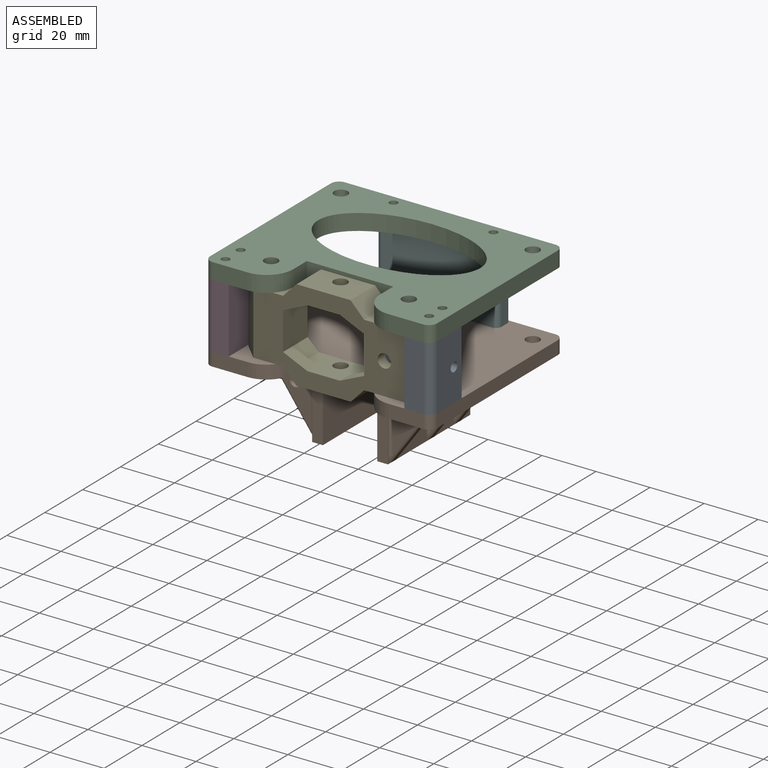
[diagram: assembled view]
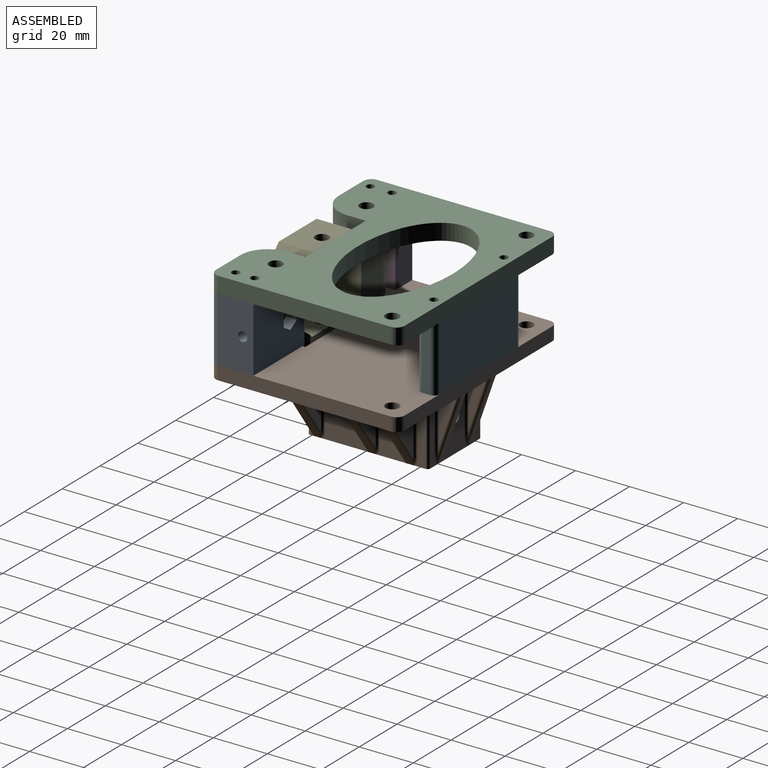
[diagram: assembled view, second angle]
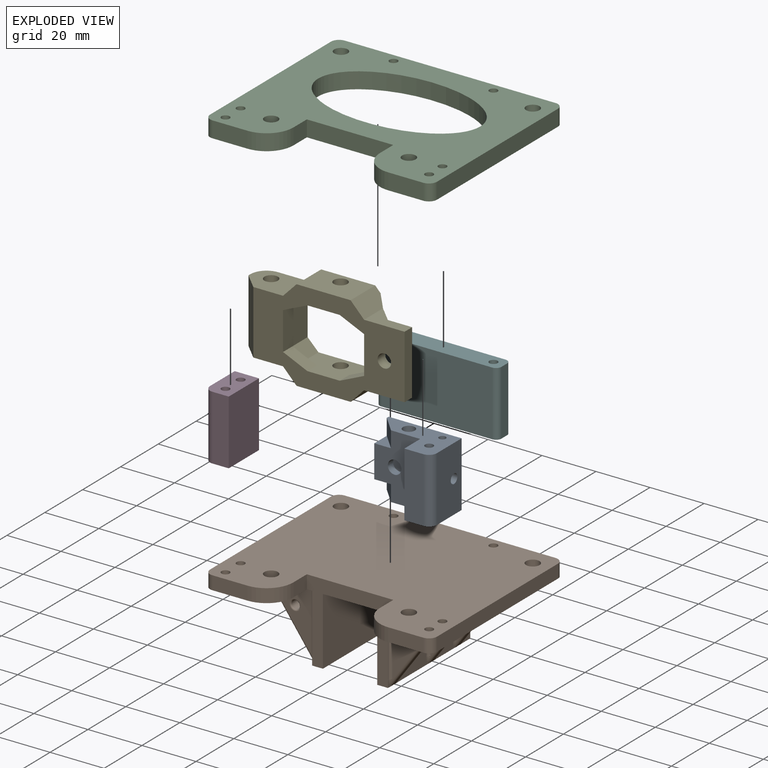
[diagram: exploded view]
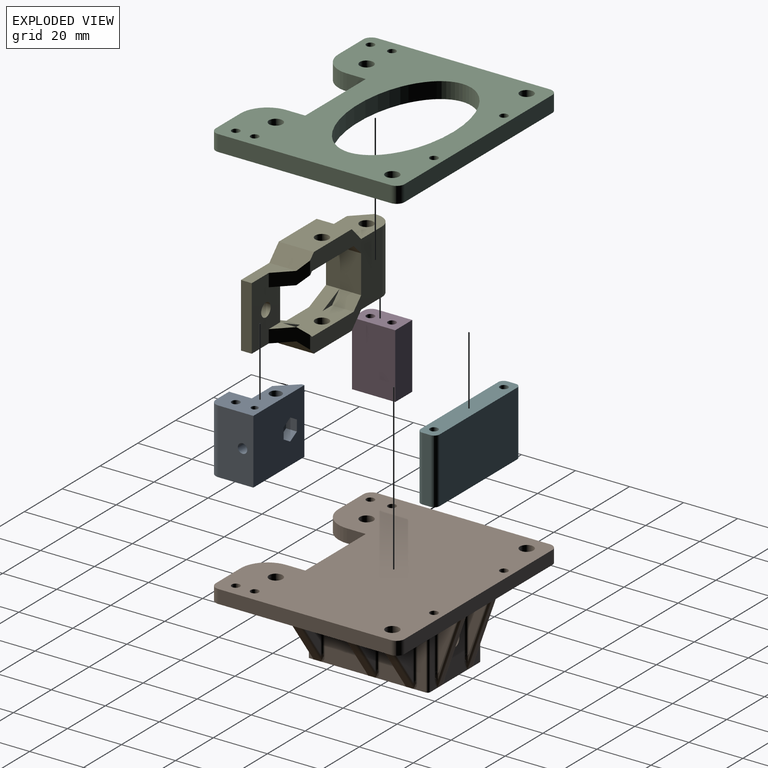
[diagram: exploded view, second angle]
ASSEMBLY  parts=6 mates=5
PART A: 33 faces, bbox 16x27x24 mm
  f0: plane 27x24mm, normal (1,0,0), area 605.6mm2, adj f2,f3,f7,f9,f20,f21,f22,f23
  f1: plane 24x17mm, normal (-1,0,0), area 314.3mm2, adj f2,f3,f4,f9,f14,f15,f16,f17
  f2: plane 27x16mm, normal (0,0,-1), area 239.7mm2, adj f0,f1,f3,f4,f5,f6,f7,f8
  f3: plane 24x7.6mm, normal (0,1,0), area 103.2mm2, adj f0,f1,f2,f9,f14,f15,f16,f17
  f4: plane 24x8.4mm, normal (0,1,0), area 201.6mm2, adj f1,f2,f5,f9
  f5: plane 24x7mm, normal (-1,0,0), area 168mm2, adj f2,f4,f6,f9
  f6: cylinder r=3mm len=24mm, axis (0,0,-1), area 113.1mm2, adj f2,f5,f7,f9
  f7: plane 24x13mm, normal (0,-1,0), area 302.4mm2, adj f0,f2,f6,f9,f27
  f8: cylinder r=1.5mm len=24mm, axis (0,0,-1), area 226.2mm2, adj f2,f9
  f9: plane 27x16mm, normal (0,0,1), area 239.7mm2, adj f0,f1,f3,f4,f5,f6,f7,f8
  f10: cylinder r=2.2mm len=8mm, axis (0,0,1), area 110.6mm2, adj f9,f11
  f11: plane 4.4x4.4mm, normal (0,0,1), area 15.2mm2, adj f10
  f12: cylinder r=2.2mm len=8mm, axis (0,0,-1), area 110.6mm2, adj f2,f13
  f13: plane 4.4x4.4mm, normal (0,0,-1), area 15.2mm2, adj f12
  f14: plane 6.6x6.17mm, normal (-0.68,0.73,0), area 54.2mm2, adj f1,f3,f9,f15
  f15: plane 6.6x6.17mm, normal (0,0,1), area 20.4mm2, adj f1,f3,f14
  f16: plane 6.6x6.17mm, normal (-0.68,0.73,0), area 54.2mm2, adj f1,f2,f3,f17
  f17: plane 6.6x6.17mm, normal (0,0,-1), area 20.4mm2, adj f1,f3,f16
  f18: cylinder r=2.5mm len=5mm, axis (-1,0,0), area 44mm2, adj f1,f19
  f19: plane 5x5mm, normal (-1,0,0), area 19.6mm2, adj f18
  f20: plane 4.04x4mm, normal (0,1,0), area 16.2mm2, adj f0,f21,f25,f26
  f21: plane 4x3.5mm, normal (0,0.5,0.87), area 16.2mm2, adj f0,f20,f22,f26
  f22: plane 4x3.5mm, normal (0,-0.5,0.87), area 16.2mm2, adj f0,f21,f23,f26
  f23: plane 4.04x4mm, normal (0,-1,0), area 16.2mm2, adj f0,f22,f24,f26
  f24: plane 4x3.5mm, normal (0,-0.5,-0.87), area 16.2mm2, adj f0,f23,f25,f26
  f25: plane 4x3.5mm, normal (0,0.5,-0.87), area 16.2mm2, adj f0,f20,f24,f26
  f26: plane 8.08x7mm, normal (1,0,0), area 42.4mm2, adj f20,f21,f22,f23,f24,f25
  f27: cylinder r=1.75mm len=11mm, axis (0,-1,0), area 121mm2, adj f7,f28
  f28: plane 3.5x3.5mm, normal (0,-1,0), area 9.6mm2, adj f27
  f29: cylinder r=1.25mm len=8mm, axis (0,0,1), area 62.8mm2, adj f9,f30
  f30: plane 2.5x2.5mm, normal (0,0,1), area 4.9mm2, adj f29
  f31: cylinder r=1.25mm len=8mm, axis (0,0,-1), area 62.8mm2, adj f2,f32
  f32: plane 2.5x2.5mm, normal (0,0,-1), area 4.9mm2, adj f31
PART B: 142 faces, bbox 84.7x70.6x31 mm
  f0: plane 19.08x6.64mm, normal (-1,0,0), area 63.4mm2, adj f5,f82,f121
  f1: plane 78x5mm, normal (0,1,0), area 390mm2, adj f3,f4,f5,f13,f14,f29,f72,f73
  f2: plane 21.9x15.77mm, normal (0,-1,0), area 159.5mm2, adj f5,f94,f97,f141
  f3: plane 70.2x33.45mm, normal (0,0,-1), area 1655.8mm2, adj f1,f7,f8,f9,f10,f11,f12,f13
  f4: plane 13.95x8.85mm, normal (0,0,-1), area 102.7mm2, adj f1,f42,f43,f44,f79,f80,f125,f127
  f5: plane 70.2x33.35mm, normal (0,0,-1), area 1655mm2, adj f0,f1,f2,f6,f7,f14,f15,f16
  f6: plane 7x5mm, normal (1,0,0), area 35mm2, adj f5,f7,f28,f29
  f7: plane 32x30mm, normal (0,-1,0), area 360mm2, adj f3,f5,f6,f8,f29,f30,f31,f32
  f8: plane 7x5mm, normal (-1,0,0), area 35mm2, adj f3,f7,f9,f29
  f9: cylinder r=10mm len=10mm, axis (0,0,-1), area 78.5mm2, adj f3,f8,f10,f29
  f10: plane 13x5mm, normal (0,-1,0), area 65mm2, adj f3,f9,f11,f29
  f11: cylinder r=3mm len=5mm, axis (0,0,-1), area 23.6mm2, adj f3,f10,f12,f29
  f12: plane 63.9x5mm, normal (1,0,0), area 319.5mm2, adj f3,f11,f13,f29
  f13: cylinder r=3mm len=5mm, axis (0,0,-1), area 23.6mm2, adj f1,f3,f12,f29
  f14: cylinder r=3mm len=5mm, axis (0,0,-1), area 23.6mm2, adj f1,f5,f15,f29
  f15: plane 63.9x5mm, normal (-1,0,0), area 319.5mm2, adj f5,f14,f16,f29
  f16: cylinder r=3mm len=5mm, axis (0,0,-1), area 23.6mm2, adj f5,f15,f17,f29
  f17: plane 13x5mm, normal (0,-1,0), area 65mm2, adj f5,f16,f28,f29
  f18: cylinder r=1.5mm len=5mm, axis (0,0,-1), area 47.1mm2, adj f3,f29
  f19: cylinder r=2.5mm len=5mm, axis (0,0,-1), area 78.5mm2, adj f3,f29
  f20: cylinder r=1.5mm len=5mm, axis (0,0,-1), area 47.1mm2, adj f5,f29
  f21: cylinder r=1.5mm len=5mm, axis (0,0,-1), area 47.1mm2, adj f5,f29
  f22: cylinder r=2.5mm len=5mm, axis (0,0,-1), area 78.5mm2, adj f5,f29
  f23: cylinder r=2.5mm len=5mm, axis (0,0,-1), area 78.5mm2, adj f5,f29
  f24: cylinder r=2.5mm len=5mm, axis (0,0,-1), area 78.5mm2, adj f3,f29
  f25: cylinder r=1.5mm len=5mm, axis (0,0,-1), area 47.1mm2, adj f5,f29
  f26: cylinder r=1.5mm len=5mm, axis (0,0,-1), area 47.1mm2, adj f3,f29
  f27: cylinder r=1.5mm len=5mm, axis (0,0,-1), area 47.1mm2, adj f3,f29
  f28: cylinder r=10mm len=10mm, axis (0,0,-1), area 78.5mm2, adj f5,f6,f17,f29
  f29: plane 84x69.9mm, normal (0,0,1), area 5156mm2, adj f1,f6,f7,f8,f9,f10,f11,f12
  f30: plane 40.2x20.1mm, normal (0,0,-1), area 800mm2, adj f7,f31,f57,f58,f59,f60,f61,f62
  f31: plane 40.2x25mm, normal (1,0,0), area 976.7mm2, adj f7,f30,f62,f63,f130
  f32: plane 3.1x1.15mm, normal (-1,0,0), area 1mm2, adj f7,f63,f98
  f33: plane 21.9x15.77mm, normal (0,1,0), area 159.5mm2, adj f5,f89,f107,f138
  f34: plane 25x10.31mm, normal (-1,0,0), area 202mm2, adj f5,f63,f105,f106,f107,f108
  f35: plane 21.9x15.77mm, normal (0,-1,0), area 159.5mm2, adj f5,f90,f105,f139
  f36: plane 21.9x15.77mm, normal (0,1,0), area 159.5mm2, adj f5,f91,f103,f140
  f37: plane 25x16.51mm, normal (-1,0,0), area 328.7mm2, adj f5,f63,f101,f102,f103,f104,f131
  f38: plane 21.9x15.77mm, normal (0,-1,0), area 172.7mm2, adj f5,f92,f101
  f39: plane 21.9x15.77mm, normal (0,1,0), area 172.7mm2, adj f5,f93,f99
  f40: plane 25x4.15mm, normal (-1,0,0), area 76mm2, adj f5,f63,f95,f99,f100
  f41: plane 25.42x4.05mm, normal (0,1,0), area 54.8mm2, adj f5,f63,f95,f121,f122
  f42: plane 19.08x6.64mm, normal (1,0,0), area 63.4mm2, adj f4,f79,f127
  f43: plane 25.42x13.28mm, normal (0,1,0), area 230mm2, adj f4,f63,f78,f125,f126,f127,f128
  f44: plane 19.08x6.64mm, normal (-1,0,0), area 63.4mm2, adj f4,f80,f125
  f45: plane 19.08x6.64mm, normal (1,0,0), area 63.4mm2, adj f3,f81,f123
  f46: plane 25.42x4.15mm, normal (0,1,0), area 57.3mm2, adj f3,f63,f96,f123,f124
  f47: plane 25x4.15mm, normal (1,0,0), area 76mm2, adj f3,f63,f96,f109,f110
  f48: plane 21.9x15.77mm, normal (0,1,0), area 159.5mm2, adj f3,f88,f109,f137
  f49: plane 21.9x15.77mm, normal (0,-1,0), area 159.5mm2, adj f3,f83,f119,f134
  f50: plane 25x10.31mm, normal (1,0,0), area 202mm2, adj f3,f63,f117,f118,f119,f120
  f51: plane 21.9x15.77mm, normal (0,1,0), area 159.5mm2, adj f3,f84,f117,f135
  f52: plane 21.9x15.77mm, normal (0,-1,0), area 159.5mm2, adj f3,f85,f115,f136
  f53: plane 25x16.51mm, normal (1,0,0), area 328.7mm2, adj f3,f63,f113,f114,f115,f116,f133
  f54: plane 21.9x15.77mm, normal (0,1,0), area 172.7mm2, adj f3,f86,f113
  f55: plane 21.9x15.77mm, normal (0,-1,0), area 172.7mm2, adj f3,f87,f111
  f56: plane 3.1x1.15mm, normal (1,0,0), area 1mm2, adj f7,f63,f112
  f57: plane 40.2x25mm, normal (-1,0,0), area 976.7mm2, adj f7,f30,f58,f63,f132
  f58: plane 25x5.55mm, normal (0,-1,0), area 138.8mm2, adj f30,f57,f59,f63
  f59: plane 25x1mm, normal (0.72,-0.69,0), area 34.5mm2, adj f30,f58,f60,f63
  f60: plane 25x7mm, normal (0,-1,0), area 146.7mm2, adj f30,f59,f61,f63,f129
  f61: plane 25x1.05mm, normal (-0.69,-0.72,0), area 36.2mm2, adj f30,f60,f62,f63
  f62: plane 25x5.55mm, normal (0,-1,0), area 138.7mm2, adj f30,f31,f61,f63
  f63: plane 44.87x28.86mm, normal (0,0,-1), area 442.1mm2, adj f7,f31,f32,f34,f37,f40,f41,f43
  f64: cylinder r=1.55mm len=3.1mm, axis (0,-1,0), area 29.2mm2, adj f139,f140
  f65: cylinder r=1.55mm len=3.1mm, axis (0,-1,0), area 29.2mm2, adj f138,f141
  f66: plane 25.15x18.15mm, normal (-0.81,0,-0.58), area 61.4mm2, adj f5,f63,f92,f93,f100,f102
  f67: plane 25.15x18.15mm, normal (-0.81,0,-0.58), area 61.4mm2, adj f5,f63,f90,f91,f104,f106
  f68: plane 25.15x18.15mm, normal (-0.81,0,-0.58), area 61.4mm2, adj f5,f63,f89,f94,f98,f108
  f69: plane 25.15x18.15mm, normal (0.81,0,-0.58), area 61.4mm2, adj f3,f63,f86,f87,f112,f114
  f70: plane 25.15x18.15mm, normal (0.81,0,-0.58), area 61.4mm2, adj f3,f63,f84,f85,f116,f118
  f71: plane 25.15x18.15mm, normal (0.81,0,-0.58), area 61.4mm2, adj f3,f63,f83,f88,f110,f120
  f72: plane 25.09x8.79mm, normal (0,0.94,-0.33), area 52.9mm2, adj f1,f63,f80,f81,f124,f126
  f73: plane 25.09x8.79mm, normal (0,0.94,-0.33), area 52.9mm2, adj f1,f63,f79,f82,f122,f128
  f74: cylinder r=1.55mm len=3.1mm, axis (0,1,0), area 29.2mm2, adj f135,f136
  f75: cylinder r=1.55mm len=3.1mm, axis (0,1,0), area 29.2mm2, adj f134,f137
  f76: cylinder r=2.5mm len=5mm, axis (-1,0,0), area 47.1mm2, adj f132,f133
  f77: cylinder r=2.5mm len=5mm, axis (1,0,0), area 47.1mm2, adj f130,f131
  f78: cylinder r=2.5mm len=5mm, axis (0,-1,0), area 70.7mm2, adj f43,f129
  f79: cylinder r=1mm len=25.17mm, axis (0,0.33,0.94), area 37.8mm2, adj f4,f42,f73,f128
  f80: cylinder r=1mm len=25.17mm, axis (0,-0.33,-0.94), area 37.8mm2, adj f4,f44,f72,f126
  f81: cylinder r=1mm len=25.17mm, axis (0,0.33,0.94), area 37.8mm2, adj f3,f45,f72,f124
  f82: cylinder r=1mm len=25.17mm, axis (0,0.33,0.94), area 37.8mm2, adj f0,f5,f73,f122
  f83: cylinder r=1mm len=25.32mm, axis (0.58,0,0.81), area 45.1mm2, adj f3,f49,f71,f120
  f84: cylinder r=1mm len=25.32mm, axis (-0.58,0,-0.81), area 45.1mm2, adj f3,f51,f70,f118
  f85: cylinder r=1mm len=25.32mm, axis (0.58,0,0.81), area 45.1mm2, adj f3,f52,f70,f116
  f86: cylinder r=1mm len=25.32mm, axis (-0.58,0,-0.81), area 45.1mm2, adj f3,f54,f69,f114
  f87: cylinder r=1mm len=25.32mm, axis (0.58,0,0.81), area 45.1mm2, adj f3,f55,f69,f112
  f88: cylinder r=1mm len=25.32mm, axis (-0.58,0,-0.81), area 45.1mm2, adj f3,f48,f71,f110
  f89: cylinder r=1mm len=25.32mm, axis (-0.58,0,0.81), area 45.1mm2, adj f5,f33,f68,f108
  f90: cylinder r=1mm len=25.32mm, axis (0.58,0,-0.81), area 45.1mm2, adj f5,f35,f67,f106
  f91: cylinder r=1mm len=25.32mm, axis (-0.58,0,0.81), area 45.1mm2, adj f5,f36,f67,f104
  f92: cylinder r=1mm len=25.32mm, axis (0.58,0,-0.81), area 45.1mm2, adj f5,f38,f66,f102
  f93: cylinder r=1mm len=25.32mm, axis (-0.58,0,0.81), area 45.1mm2, adj f5,f39,f66,f100
  f94: cylinder r=1mm len=25.32mm, axis (-0.58,0,0.81), area 45.1mm2, adj f2,f5,f68,f98
  f95: cylinder r=1mm len=25mm, axis (0,0,1), area 39.3mm2, adj f5,f40,f41,f63
  f96: cylinder r=1mm len=25mm, axis (0,0,-1), area 39.3mm2, adj f3,f46,f47,f63
  f97: cylinder r=1mm len=21.9mm, axis (0,0,1), area 34.4mm2, adj f2,f5,f7,f98
  f98: bspline ~3.42x2.85mm, area 4.2mm2, adj f32,f63,f68,f94,f97
  f99: cylinder r=1mm len=21.9mm, axis (0,0,-1), area 34.4mm2, adj f5,f39,f40,f100
  f100: bspline ~3.42x2.85mm, area 4.2mm2, adj f40,f63,f66,f93,f99
  f101: cylinder r=1mm len=21.9mm, axis (0,0,-1), area 34.4mm2, adj f5,f37,f38,f102
  f102: bspline ~3.42x2.85mm, area 4.2mm2, adj f37,f63,f66,f92,f101
  f103: cylinder r=1mm len=21.9mm, axis (0,0,-1), area 34.4mm2, adj f5,f36,f37,f104
  f104: bspline ~3.42x2.85mm, area 4.2mm2, adj f37,f63,f67,f91,f103
  f105: cylinder r=1mm len=21.9mm, axis (0,0,-1), area 34.4mm2, adj f5,f34,f35,f106
  f106: bspline ~3.42x2.85mm, area 4.2mm2, adj f34,f63,f67,f90,f105
  f107: cylinder r=1mm len=21.9mm, axis (0,0,-1), area 34.4mm2, adj f5,f33,f34,f108
  f108: bspline ~3.42x2.85mm, area 4.2mm2, adj f34,f63,f68,f89,f107
  f109: cylinder r=1mm len=21.9mm, axis (0,0,-1), area 34.4mm2, adj f3,f47,f48,f110
  f110: bspline ~3.42x2.85mm, area 4.2mm2, adj f47,f63,f71,f88,f109
  f111: cylinder r=1mm len=21.9mm, axis (0,0,1), area 34.4mm2, adj f3,f7,f55,f112
  f112: bspline ~3.42x2.85mm, area 4.2mm2, adj f56,f63,f69,f87,f111
  f113: cylinder r=1mm len=21.9mm, axis (0,0,-1), area 34.4mm2, adj f3,f53,f54,f114
  f114: bspline ~3.42x2.85mm, area 4.2mm2, adj f53,f63,f69,f86,f113
  f115: cylinder r=1mm len=21.9mm, axis (0,0,-1), area 34.4mm2, adj f3,f52,f53,f116
  f116: bspline ~3.42x2.85mm, area 4.2mm2, adj f53,f63,f70,f85,f115
  f117: cylinder r=1mm len=21.9mm, axis (0,0,-1), area 34.4mm2, adj f3,f50,f51,f118
  f118: bspline ~3.42x2.85mm, area 4.2mm2, adj f50,f63,f70,f84,f117
  f119: cylinder r=1mm len=21.9mm, axis (0,0,-1), area 34.4mm2, adj f3,f49,f50,f120
  f120: bspline ~3.42x2.85mm, area 4.2mm2, adj f50,f63,f71,f83,f119
  f121: cylinder r=1mm len=19.08mm, axis (0,0,-1), area 30mm2, adj f0,f5,f41,f122
  f122: bspline ~6.08x2.47mm, area 6.4mm2, adj f41,f63,f73,f82,f121
  f123: cylinder r=1mm len=19.08mm, axis (0,0,1), area 30mm2, adj f3,f45,f46,f124
  f124: bspline ~6.08x2.47mm, area 6.4mm2, adj f46,f63,f72,f81,f123
  f125: cylinder r=1mm len=19.08mm, axis (0,0,-1), area 30mm2, adj f4,f43,f44,f126
  f126: bspline ~6.08x2.47mm, area 6.4mm2, adj f43,f63,f72,f80,f125
  f127: cylinder r=1mm len=19.08mm, axis (0,0,1), area 30mm2, adj f4,f42,f43,f128
  f128: bspline ~6.08x2.47mm, area 6.4mm2, adj f43,f63,f73,f79,f127
  f129: torus R=3mm, axis (0,-1,0), area 13.2mm2, adj f60,f78
  f130: torus R=3mm, axis (1,0,0), area 13.2mm2, adj f31,f77
  f131: torus R=3mm, axis (1,0,0), area 13.2mm2, adj f37,f77
  f132: torus R=3mm, axis (1,0,0), area 13.2mm2, adj f57,f76
  f133: torus R=3mm, axis (1,0,0), area 13.2mm2, adj f53,f76
  f134: torus R=2.05mm, axis (0,-1,0), area 8.5mm2, adj f49,f75
  f135: torus R=2.05mm, axis (0,1,0), area 8.5mm2, adj f51,f74
  f136: torus R=2.05mm, axis (0,-1,0), area 8.5mm2, adj f52,f74
  f137: torus R=2.05mm, axis (0,1,0), area 8.5mm2, adj f48,f75
  f138: torus R=2.05mm, axis (0,-1,0), area 8.5mm2, adj f33,f65
  f139: torus R=2.05mm, axis (0,1,0), area 8.5mm2, adj f35,f64
  f140: torus R=2.05mm, axis (0,-1,0), area 8.5mm2, adj f36,f64
  f141: torus R=2.05mm, axis (0,1,0), area 8.5mm2, adj f2,f65
PART C: 27 faces, bbox 84x69.9x6 mm
  f0: plane 7x6mm, normal (1,0,0), area 42mm2, adj f1,f24,f25,f26
  f1: plane 32x6mm, normal (0,-1,0), area 192mm2, adj f0,f2,f25,f26
  f2: plane 7x6mm, normal (-1,0,0), area 42mm2, adj f1,f3,f25,f26
  f3: cylinder r=10mm len=10mm, axis (0,0,-1), area 94.2mm2, adj f2,f4,f25,f26
  f4: plane 13x6mm, normal (0,-1,0), area 78mm2, adj f3,f5,f25,f26
  f5: cylinder r=3mm len=6mm, axis (0,0,-1), area 28.3mm2, adj f4,f6,f25,f26
  f6: plane 63.9x6mm, normal (1,0,0), area 383.4mm2, adj f5,f7,f25,f26
  f7: cylinder r=3mm len=6mm, axis (0,0,-1), area 28.3mm2, adj f6,f8,f25,f26
  f8: plane 78x6mm, normal (0,1,0), area 468mm2, adj f7,f9,f25,f26
  f9: cylinder r=3mm len=6mm, axis (0,0,-1), area 28.3mm2, adj f8,f10,f25,f26
  f10: plane 63.9x6mm, normal (-1,0,0), area 383.4mm2, adj f9,f11,f25,f26
  f11: cylinder r=3mm len=6mm, axis (0,0,-1), area 28.3mm2, adj f10,f12,f25,f26
  f12: plane 13x6mm, normal (0,-1,0), area 78mm2, adj f11,f24,f25,f26
  f13: cylinder r=1.5mm len=6mm, axis (0,0,-1), area 56.5mm2, adj f25,f26
  f14: cylinder r=2.5mm len=6mm, axis (0,0,-1), area 94.2mm2, adj f25,f26
  f15: cylinder r=1.5mm len=6mm, axis (0,0,-1), area 56.5mm2, adj f25,f26
  f16: cylinder r=1.5mm len=6mm, axis (0,0,-1), area 56.5mm2, adj f25,f26
  f17: cylinder r=2.5mm len=6mm, axis (0,0,-1), area 94.2mm2, adj f25,f26
  f18: cylinder r=2.5mm len=6mm, axis (0,0,-1), area 94.2mm2, adj f25,f26
  f19: cylinder r=2.5mm len=6mm, axis (0,0,-1), area 94.2mm2, adj f25,f26
  f20: cylinder r=1.5mm len=6mm, axis (0,0,-1), area 56.5mm2, adj f25,f26
  f21: cylinder r=1.5mm len=6mm, axis (0,0,-1), area 56.5mm2, adj f25,f26
  f22: cylinder r=1.5mm len=6mm, axis (0,0,-1), area 56.5mm2, adj f25,f26
  f23: extruded ~60x35mm, area 910.9mm2, adj f25,f26
  f24: cylinder r=10mm len=10mm, axis (0,0,-1), area 94.2mm2, adj f0,f12,f25,f26
  f25: plane 84x69.9mm, normal (0,0,1), area 3506.7mm2, adj f0,f1,f2,f3,f4,f5,f6,f7
  f26: plane 84x69.9mm, normal (0,0,-1), area 3506.7mm2, adj f0,f1,f2,f3,f4,f5,f6,f7
PART D: 9 faces, bbox 16x9x24 mm
  f0: plane 24x9mm, normal (1,0,0), area 216mm2, adj f1,f5,f7,f8
  f1: plane 24x13mm, normal (0,1,0), area 312mm2, adj f0,f2,f7,f8
  f2: cylinder r=3mm len=24mm, axis (0,0,-1), area 113.1mm2, adj f1,f3,f7,f8
  f3: plane 24x6mm, normal (-1,0,0), area 144mm2, adj f2,f5,f7,f8
  f4: cylinder r=1.5mm len=24mm, axis (0,0,-1), area 226.2mm2, adj f7,f8
  f5: plane 24x16mm, normal (0,-1,0), area 384mm2, adj f0,f3,f7,f8
  f6: cylinder r=1.5mm len=24mm, axis (0,0,-1), area 226.2mm2, adj f7,f8
  f7: plane 16x9mm, normal (0,0,1), area 127.9mm2, adj f0,f1,f2,f3,f4,f5,f6
  f8: plane 16x9mm, normal (0,0,-1), area 127.9mm2, adj f0,f1,f2,f3,f4,f5,f6
PART E: 41 faces, bbox 62x34x13 mm
  f0: plane 14x4mm, normal (-1,0,0), area 56mm2, adj f7,f8,f22,f36
  f1: plane 23.6x4mm, normal (1,0,0), area 94.4mm2, adj f2,f3,f22,f36
  f2: plane 15x10mm, normal (0,-1,0), area 78mm2, adj f1,f14,f22,f36,f37
  f3: plane 15x10mm, normal (0,1,0), area 78mm2, adj f1,f15,f22,f36,f38
  f4: cylinder r=2.5mm len=5mm, axis (0,0,-1), area 62.8mm2, adj f22,f36
  f5: plane 9x5mm, normal (0.41,0.91,0), area 49.2mm2, adj f10,f11,f22,f27
  f6: plane 9x5mm, normal (0.41,-0.91,0), area 49.2mm2, adj f11,f12,f22,f33
  f7: plane 9x5mm, normal (-0.41,-0.91,0), area 49.2mm2, adj f0,f12,f22,f31,f34
  f8: plane 9x5mm, normal (-0.41,0.91,0), area 49.2mm2, adj f0,f10,f22,f29,f35
  f9: plane 38x34mm, normal (0,0,1), area 570.4mm2, adj f10,f11,f12,f13,f14,f15,f16,f17
  f10: plane 22x13mm, normal (0,1,0), area 216.4mm2, adj f5,f8,f9,f22,f26,f27,f28,f29
  f11: plane 14x13mm, normal (1,0,0), area 182mm2, adj f5,f6,f9,f22,f26,f32
  f12: plane 22x13mm, normal (0,-1,0), area 216.4mm2, adj f6,f7,f9,f22,f30,f31,f32,f33
  f13: plane 20x13mm, normal (0,-1,0), area 240.4mm2, adj f9,f14,f21,f22,f40
  f14: plane 13x5.2mm, normal (0.72,-0.69,0), area 87.3mm2, adj f2,f9,f13,f22,f37
  f15: plane 13x5.2mm, normal (0.72,0.69,0), area 87.3mm2, adj f3,f9,f16,f22,f38
  f16: plane 20x13mm, normal (0,1,0), area 240.4mm2, adj f9,f15,f17,f22,f39
  f17: plane 13x5.2mm, normal (-0.72,0.69,0), area 93.8mm2, adj f9,f16,f18,f22
  f18: plane 17x13mm, normal (0,1,0), area 175.6mm2, adj f9,f17,f19,f22,f23,f24,f25
  f19: plane 23.6x1mm, normal (-1,0,0), area 23.6mm2, adj f18,f20,f23,f24
  f20: plane 17x13mm, normal (0,-1,0), area 175.6mm2, adj f9,f19,f21,f22,f23,f24,f25
  f21: plane 13x5.2mm, normal (-0.72,-0.69,0), area 93.8mm2, adj f9,f13,f20,f22
  f22: plane 56x34mm, normal (0,0,-1), area 974mm2, adj f0,f1,f2,f3,f4,f5,f6,f7
  f23: plane 23.6x6mm, normal (-0.71,0,-0.71), area 200.3mm2, adj f18,f19,f20,f22
  f24: cylinder r=6mm len=23.6mm, axis (0,1,0), area 222.4mm2, adj f9,f18,f19,f20
  f25: cylinder r=2.5mm len=23.6mm, axis (0,-1,0), area 370.7mm2, adj f18,f20
  f26: plane 8x4mm, normal (0.71,0.71,0), area 45.3mm2, adj f9,f10,f11,f27
  f27: plane 9x4mm, normal (0,0,1), area 10mm2, adj f5,f10,f26
  f28: plane 8x4mm, normal (-0.71,0.71,0), area 38.9mm2, adj f9,f10,f29,f35,f37
  f29: plane 9x4mm, normal (0,0,1), area 10mm2, adj f8,f10,f28
  f30: plane 8x4mm, normal (-0.71,-0.71,0), area 38.9mm2, adj f9,f12,f31,f34,f38
  f31: plane 9x4mm, normal (0,0,1), area 10mm2, adj f7,f12,f30
  f32: plane 8x4mm, normal (0.71,-0.71,0), area 45.3mm2, adj f9,f11,f12,f33
  f33: plane 9x4mm, normal (0,0,1), area 10mm2, adj f6,f12,f32
  f34: plane 6x6mm, normal (0,-1,0), area 18mm2, adj f7,f30,f36,f38
  f35: plane 6x6mm, normal (0,1,0), area 18mm2, adj f8,f28,f36,f37
  f36: plane 23.6x15mm, normal (0,0,1), area 276.8mm2, adj f0,f1,f2,f3,f4,f34,f35,f37
  f37: plane 9x9mm, normal (0.71,0,0.71), area 61.3mm2, adj f2,f9,f14,f28,f35,f36
  f38: plane 9x9mm, normal (0.71,0,0.71), area 61.3mm2, adj f3,f9,f15,f30,f34,f36
  f39: cylinder r=2.5mm len=6mm, axis (0,-1,0), area 94.2mm2, adj f12,f16
  f40: cylinder r=2.5mm len=6mm, axis (0,1,0), area 94.2mm2, adj f10,f13
PART F: 12 faces, bbox 45x24x7 mm
  f0: plane 24x3mm, normal (1,0,0), area 72mm2, adj f1,f9,f10,f11
  f1: cylinder r=2mm len=24mm, axis (0,1,0), area 75.4mm2, adj f0,f2,f10,f11
  f2: plane 41x24mm, normal (0,0,1), area 984mm2, adj f1,f3,f10,f11
  f3: cylinder r=2mm len=24mm, axis (0,1,0), area 75.4mm2, adj f2,f4,f10,f11
  f4: plane 24x3mm, normal (-1,0,0), area 72mm2, adj f3,f5,f10,f11
  f5: cylinder r=2mm len=24mm, axis (0,1,0), area 75.4mm2, adj f4,f6,f10,f11
  f6: plane 41x24mm, normal (0,0,-1), area 984mm2, adj f5,f9,f10,f11
  f7: cylinder r=1.5mm len=24mm, axis (0,1,0), area 226.2mm2, adj f10,f11
  f8: cylinder r=1.5mm len=24mm, axis (0,1,0), area 226.2mm2, adj f10,f11
  f9: cylinder r=2mm len=24mm, axis (0,1,0), area 75.4mm2, adj f0,f6,f10,f11
  f10: plane 45x7mm, normal (0,-1,0), area 297.4mm2, adj f0,f1,f2,f3,f4,f5,f6,f7
  f11: plane 45x7mm, normal (0,1,0), area 297.4mm2, adj f0,f1,f2,f3,f4,f5,f6,f7
PLACE A rot(axis=(0,0,1),90deg) t=(69.56,4.64,12.6)mm
PLACE B t=(43.75,25.54,7.6)mm
PLACE C t=(43.75,25.54,36.6)mm
PLACE D rot(axis=(0,0,1),90deg) t=(5.87,8.69,12.6)mm
PLACE E rot(axis=(-1,0,0),90deg) t=(45.75,-0.76,24.8)mm
PLACE F rot(axis=(-1,0,0),90deg) t=(68.23,75.17,12.6)mm
MATE fastened F.f7 <-> C.f20  axis (0,0,1) through (27.25,62.64,36.6)mm
MATE fastened C.f13 <-> A.f8  axis (0,0,-1) through (82.75,2.24,36.6)mm
MATE fastened D.f4 <-> B.f21  axis (0,0,-1) through (8.75,0.24,12.6)mm
MATE fastened D.f4 <-> C.f16  axis (0,0,1) through (8.75,0.24,36.6)mm
MATE fastened E.f25 <-> C.f17  axis (0,0,1) through (20.75,7.24,36.6)mm
